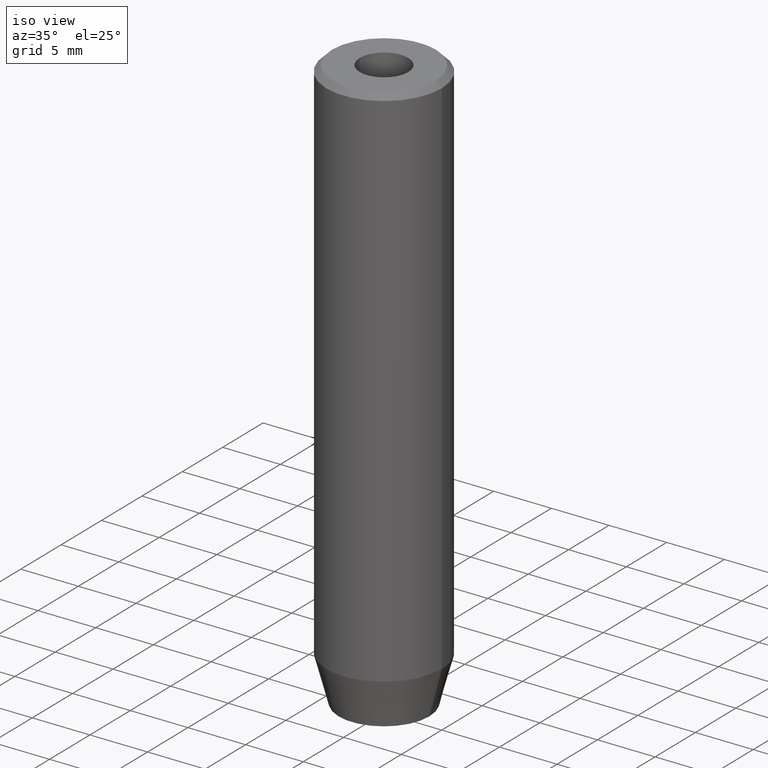
[diagram: clean part render]
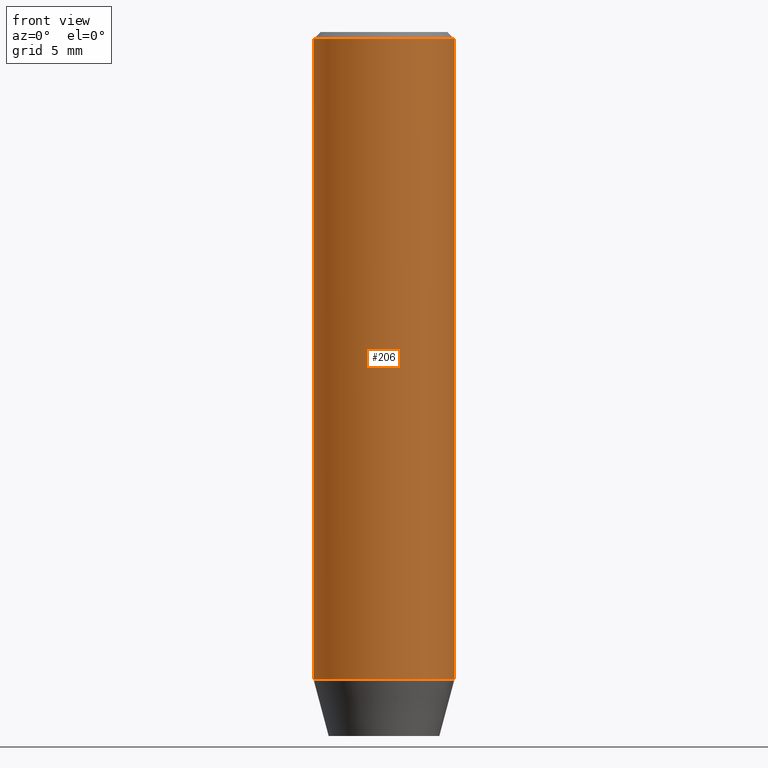
[diagram: tour spotlight — one face highlighted and labeled with its STEP entity id]
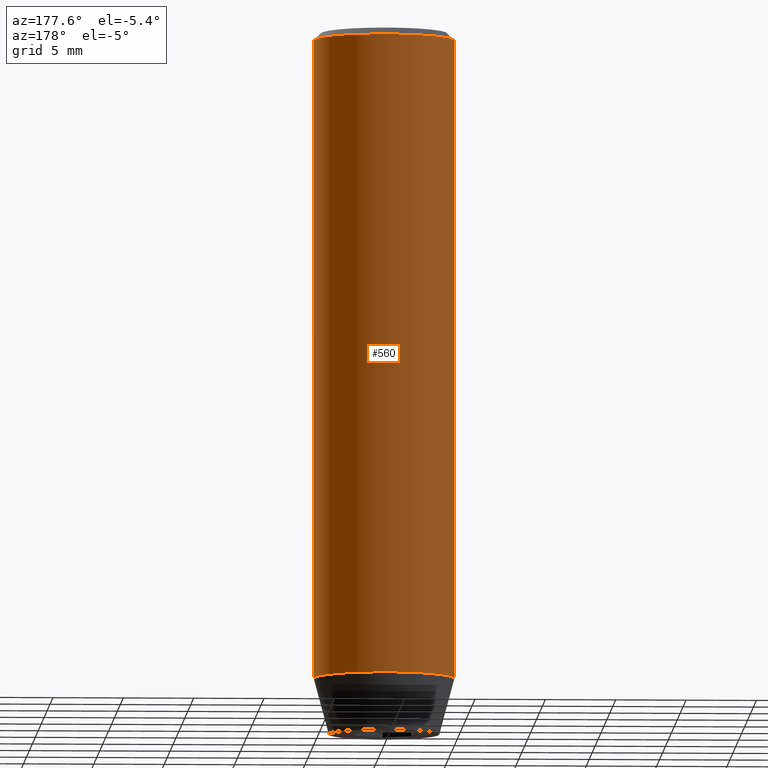
[diagram: tour spotlight — one face highlighted and labeled with its STEP entity id]
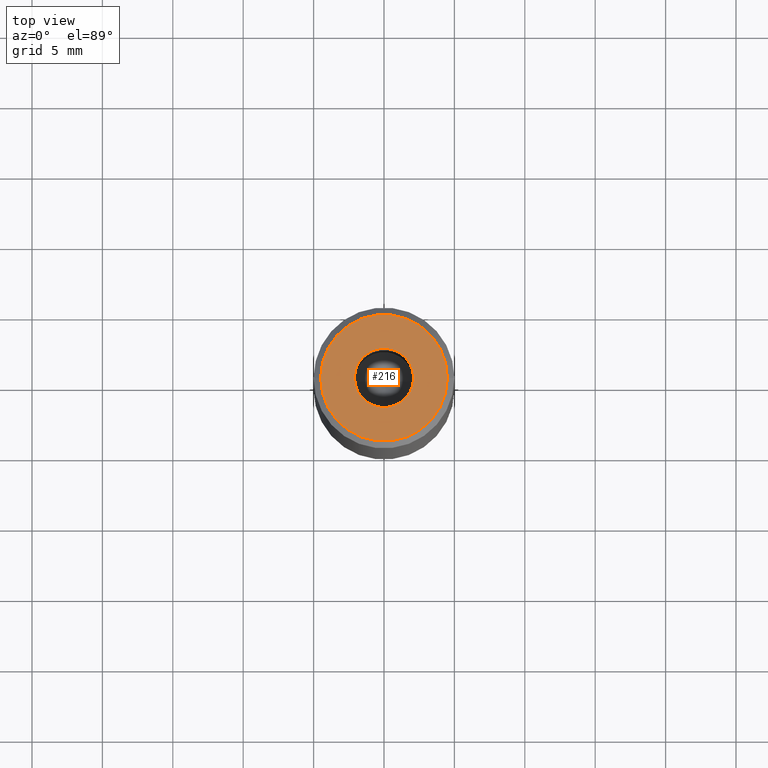
[diagram: tour spotlight — one face highlighted and labeled with its STEP entity id]
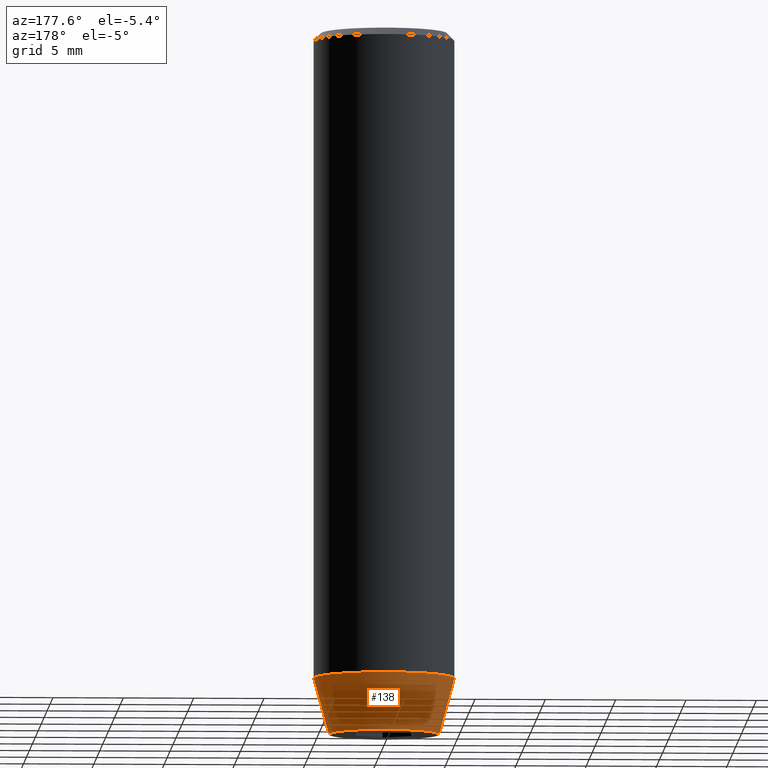
[diagram: tour spotlight — one face highlighted and labeled with its STEP entity id]
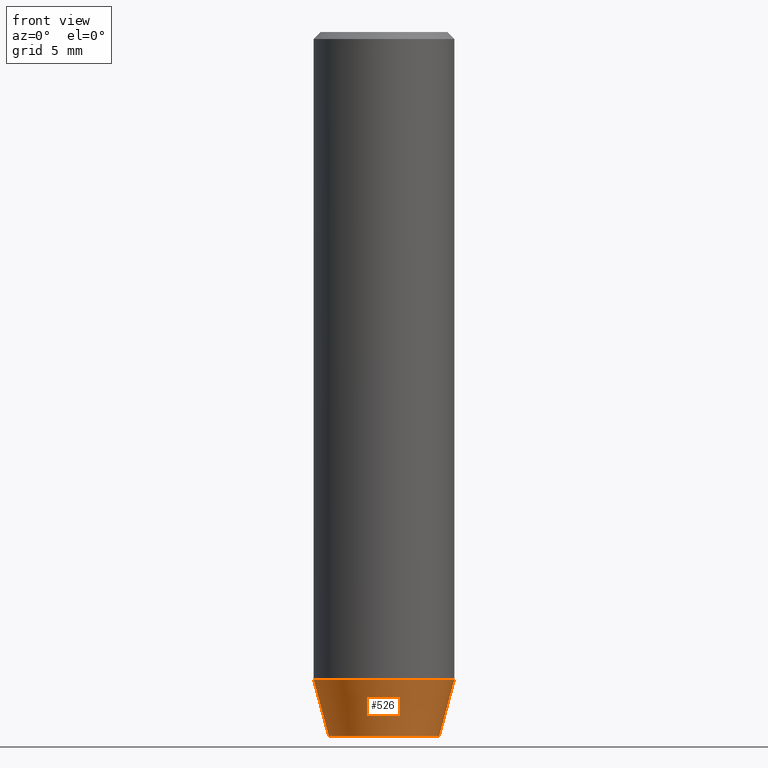
[diagram: tour spotlight — one face highlighted and labeled with its STEP entity id]
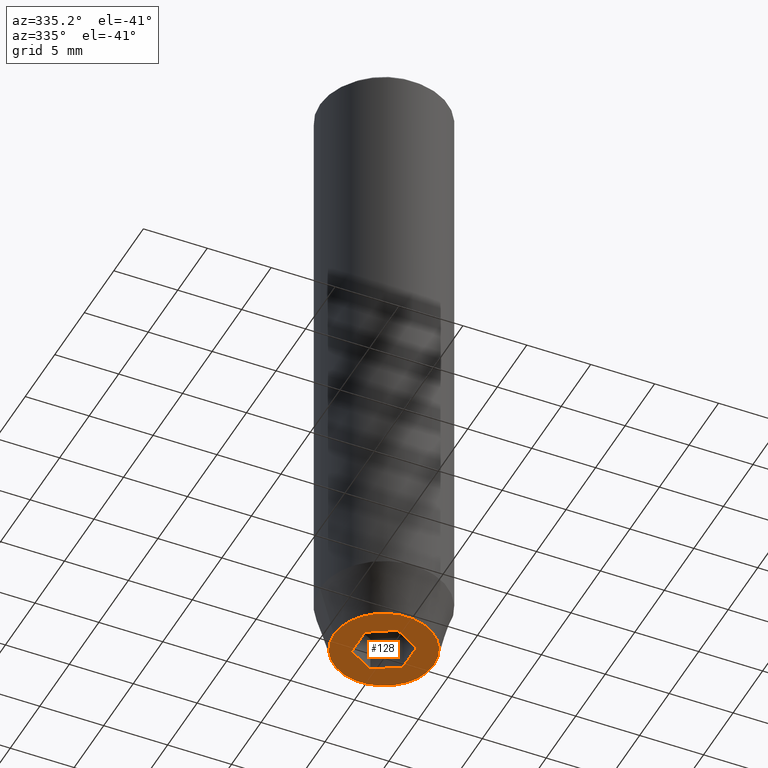
[diagram: tour spotlight — one face highlighted and labeled with its STEP entity id]
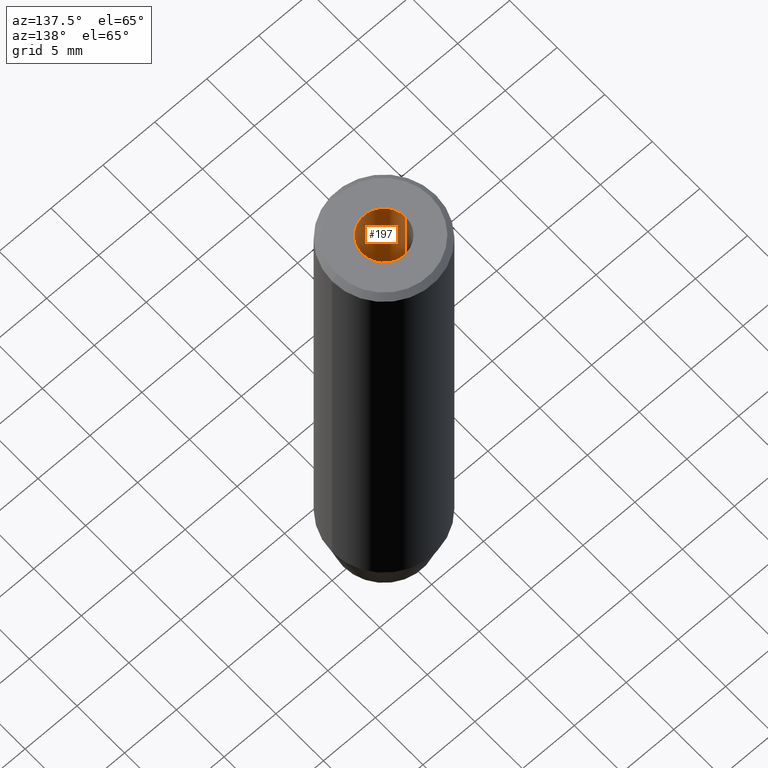
[diagram: tour spotlight — one face highlighted and labeled with its STEP entity id]
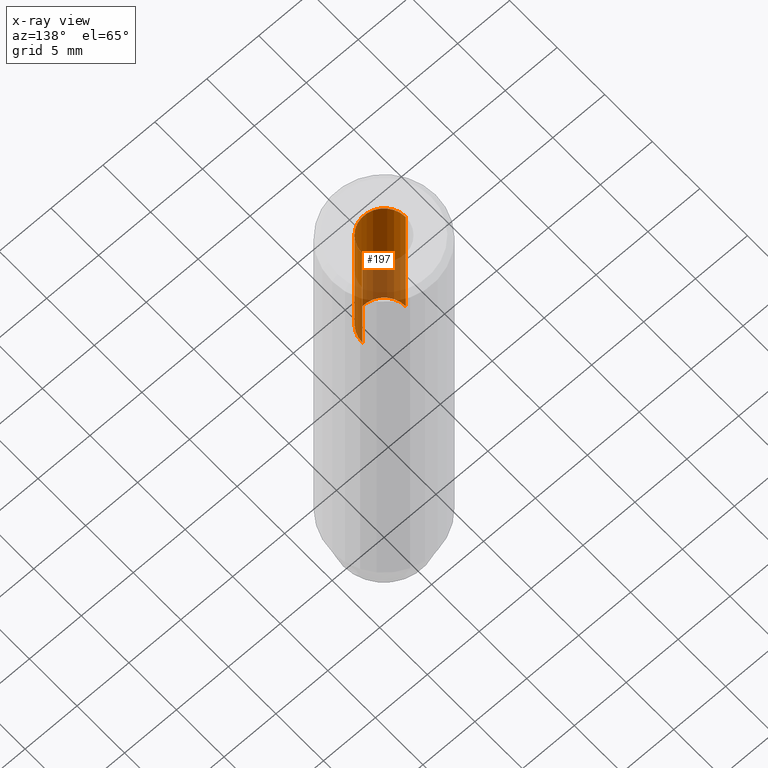
[diagram: x-ray of the same camera — body ghosted, this tour face saturated]
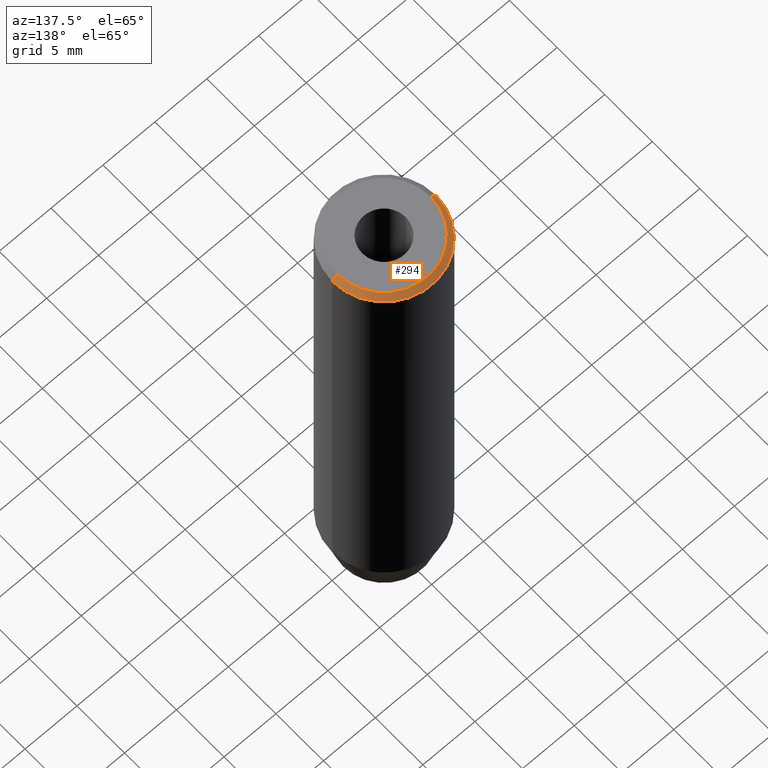
[diagram: tour spotlight — one face highlighted and labeled with its STEP entity id]
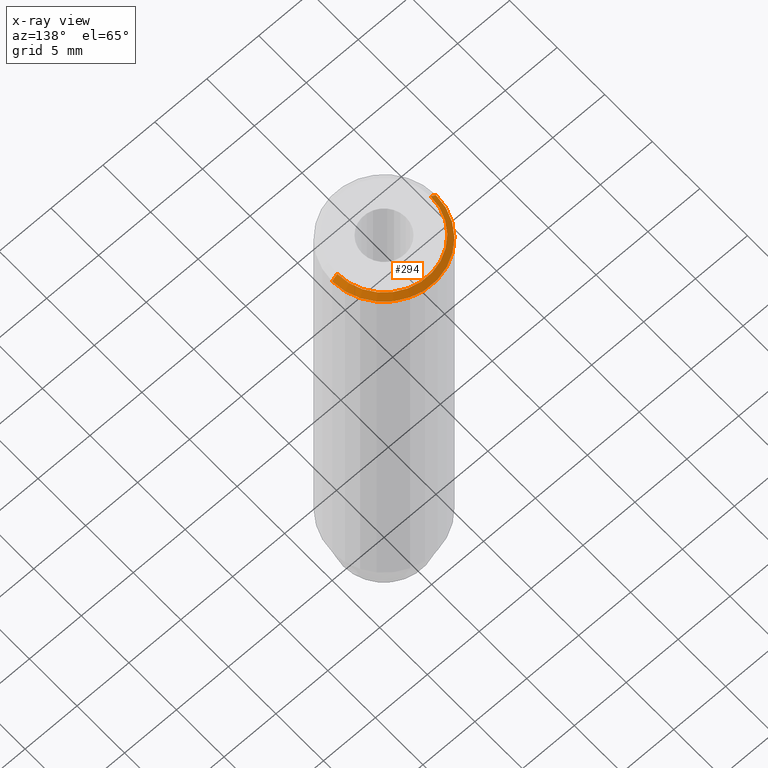
[diagram: x-ray of the same camera — body ghosted, this tour face saturated]
A machine part: a face-by-face anatomy tour. The part has 19 B-rep faces; the first image is the clean iso view, then the 8 largest visible faces are spotlighted one at a time (largest first), each with its STEP entity span.

Face 1 — front view, entity #206. In plain terms, the highlighted cylindrical surface (partial cylindrical patch) has radius 5 mm, axis along (-0, -0, 1).
Definition (entity closure, byte-faithful):
#10 = FACE_OUTER_BOUND ( 'NONE', #161, .T. ) ;
#25 = EDGE_CURVE ( 'NONE', #236, #104, #170, .T. ) ;
#43 = CARTESIAN_POINT ( 'NONE',  ( 5.000000000000000000, 0.000000000000000000, -0.4999999999999995559 ) ) ;
#51 = ORIENTED_EDGE ( 'NONE', *, *, #241, .T. ) ;
#58 = AXIS2_PLACEMENT_3D ( 'NONE', #318, #227, #548 ) ;
#88 = CARTESIAN_POINT ( 'NONE',  ( 0.000000000000000000, 0.000000000000000000, -46.00000000000000000 ) ) ;
#103 = VECTOR ( 'NONE', #309, 1000.000000000000000 ) ;
#104 = VERTEX_POINT ( 'NONE', #400 ) ;
#111 = VERTEX_POINT ( 'NONE', #43 ) ;
#148 = CARTESIAN_POINT ( 'NONE',  ( 0.000000000000000000, 0.000000000000000000, -0.4999999999999995559 ) ) ;
#161 = EDGE_LOOP ( 'NONE', ( #229, #203, #51, #254 ) ) ;
#170 = LINE ( 'NONE', #347, #103 ) ;
#178 = EDGE_CURVE ( 'NONE', #236, #459, #269, .T. ) ;
#179 = CYLINDRICAL_SURFACE ( 'NONE', #58, 5.000000000000000000 ) ;
#203 = ORIENTED_EDGE ( 'NONE', *, *, #178, .T. ) ;
#206 = ADVANCED_FACE ( 'NONE', ( #10 ), #179, .T. ) ;
#220 = CARTESIAN_POINT ( 'NONE',  ( -5.000000000000000000, 6.123233995736766282E-16, -46.00000000000000000 ) ) ;
#227 = DIRECTION ( 'NONE',  ( -0.000000000000000000, -0.000000000000000000, 1.000000000000000000 ) ) ;
#229 = ORIENTED_EDGE ( 'NONE', *, *, #25, .F. ) ;
#236 = VERTEX_POINT ( 'NONE', #220 ) ;
#241 = EDGE_CURVE ( 'NONE', #459, #111, #543, .T. ) ;
#254 = ORIENTED_EDGE ( 'NONE', *, *, #496, .T. ) ;
#269 = CIRCLE ( 'NONE', #545, 5.000000000000000000 ) ;
#275 = DIRECTION ( 'NONE',  ( -0.000000000000000000, -0.000000000000000000, 1.000000000000000000 ) ) ;
#282 = CARTESIAN_POINT ( 'NONE',  ( 5.000000000000000000, 0.000000000000000000, -46.00000000000000000 ) ) ;
#309 = DIRECTION ( 'NONE',  ( -0.000000000000000000, -0.000000000000000000, 1.000000000000000000 ) ) ;
#318 = CARTESIAN_POINT ( 'NONE',  ( 0.000000000000000000, 0.000000000000000000, 0.000000000000000000 ) ) ;
#324 = AXIS2_PLACEMENT_3D ( 'NONE', #148, #430, #521 ) ;
#347 = CARTESIAN_POINT ( 'NONE',  ( -5.000000000000000000, 6.123233995736766282E-16, 0.000000000000000000 ) ) ;
#400 = CARTESIAN_POINT ( 'NONE',  ( -5.000000000000000000, 6.123233995736766282E-16, -0.4999999999999995559 ) ) ;
#430 = DIRECTION ( 'NONE',  ( 0.000000000000000000, 0.000000000000000000, -1.000000000000000000 ) ) ;
#442 = DIRECTION ( 'NONE',  ( -0.000000000000000000, -0.000000000000000000, 1.000000000000000000 ) ) ;
#450 = CARTESIAN_POINT ( 'NONE',  ( 5.000000000000000000, 0.000000000000000000, 0.000000000000000000 ) ) ;
#459 = VERTEX_POINT ( 'NONE', #282 ) ;
#496 = EDGE_CURVE ( 'NONE', #111, #104, #498, .T. ) ;
#498 = CIRCLE ( 'NONE', #324, 5.000000000000000000 ) ;
#503 = DIRECTION ( 'NONE',  ( 1.000000000000000000, 0.000000000000000000, 0.000000000000000000 ) ) ;
#521 = DIRECTION ( 'NONE',  ( 1.000000000000000000, 0.000000000000000000, 0.000000000000000000 ) ) ;
#543 = LINE ( 'NONE', #450, #554 ) ;
#545 = AXIS2_PLACEMENT_3D ( 'NONE', #88, #275, #503 ) ;
#548 = DIRECTION ( 'NONE',  ( 1.000000000000000000, 0.000000000000000000, 0.000000000000000000 ) ) ;
#554 = VECTOR ( 'NONE', #442, 1000.000000000000000 ) ;

Face 2 — auxiliary view, entity #560. In plain terms, the highlighted cylindrical surface (partial cylindrical patch) has radius 5 mm, axis along (-0, -0, 1).
Definition (entity closure, byte-faithful):
#9 = CARTESIAN_POINT ( 'NONE',  ( 0.000000000000000000, 0.000000000000000000, 0.000000000000000000 ) ) ;
#25 = EDGE_CURVE ( 'NONE', #236, #104, #170, .T. ) ;
#43 = CARTESIAN_POINT ( 'NONE',  ( 5.000000000000000000, 0.000000000000000000, -0.4999999999999995559 ) ) ;
#49 = CIRCLE ( 'NONE', #380, 5.000000000000000000 ) ;
#65 = EDGE_CURVE ( 'NONE', #104, #111, #49, .T. ) ;
#103 = VECTOR ( 'NONE', #309, 1000.000000000000000 ) ;
#104 = VERTEX_POINT ( 'NONE', #400 ) ;
#106 = AXIS2_PLACEMENT_3D ( 'NONE', #9, #187, #289 ) ;
#111 = VERTEX_POINT ( 'NONE', #43 ) ;
#118 = EDGE_CURVE ( 'NONE', #459, #236, #475, .T. ) ;
#167 = DIRECTION ( 'NONE',  ( -0.000000000000000000, -0.000000000000000000, 1.000000000000000000 ) ) ;
#170 = LINE ( 'NONE', #347, #103 ) ;
#174 = DIRECTION ( 'NONE',  ( 1.000000000000000000, 0.000000000000000000, 0.000000000000000000 ) ) ;
#187 = DIRECTION ( 'NONE',  ( -0.000000000000000000, -0.000000000000000000, 1.000000000000000000 ) ) ;
#220 = CARTESIAN_POINT ( 'NONE',  ( -5.000000000000000000, 6.123233995736766282E-16, -46.00000000000000000 ) ) ;
#225 = CARTESIAN_POINT ( 'NONE',  ( 0.000000000000000000, 0.000000000000000000, -46.00000000000000000 ) ) ;
#236 = VERTEX_POINT ( 'NONE', #220 ) ;
#241 = EDGE_CURVE ( 'NONE', #459, #111, #543, .T. ) ;
#256 = DIRECTION ( 'NONE',  ( 0.000000000000000000, 0.000000000000000000, -1.000000000000000000 ) ) ;
#282 = CARTESIAN_POINT ( 'NONE',  ( 5.000000000000000000, 0.000000000000000000, -46.00000000000000000 ) ) ;
#289 = DIRECTION ( 'NONE',  ( 1.000000000000000000, 0.000000000000000000, 0.000000000000000000 ) ) ;
#309 = DIRECTION ( 'NONE',  ( -0.000000000000000000, -0.000000000000000000, 1.000000000000000000 ) ) ;
#347 = CARTESIAN_POINT ( 'NONE',  ( -5.000000000000000000, 6.123233995736766282E-16, 0.000000000000000000 ) ) ;
#376 = CYLINDRICAL_SURFACE ( 'NONE', #106, 5.000000000000000000 ) ;
#380 = AXIS2_PLACEMENT_3D ( 'NONE', #446, #256, #535 ) ;
#392 = ORIENTED_EDGE ( 'NONE', *, *, #25, .T. ) ;
#400 = CARTESIAN_POINT ( 'NONE',  ( -5.000000000000000000, 6.123233995736766282E-16, -0.4999999999999995559 ) ) ;
#431 = ORIENTED_EDGE ( 'NONE', *, *, #118, .T. ) ;
#442 = DIRECTION ( 'NONE',  ( -0.000000000000000000, -0.000000000000000000, 1.000000000000000000 ) ) ;
#446 = CARTESIAN_POINT ( 'NONE',  ( 0.000000000000000000, 0.000000000000000000, -0.4999999999999995559 ) ) ;
#450 = CARTESIAN_POINT ( 'NONE',  ( 5.000000000000000000, 0.000000000000000000, 0.000000000000000000 ) ) ;
#453 = ORIENTED_EDGE ( 'NONE', *, *, #65, .T. ) ;
#459 = VERTEX_POINT ( 'NONE', #282 ) ;
#466 = AXIS2_PLACEMENT_3D ( 'NONE', #225, #167, #174 ) ;
#475 = CIRCLE ( 'NONE', #466, 5.000000000000000000 ) ;
#535 = DIRECTION ( 'NONE',  ( 1.000000000000000000, 0.000000000000000000, 0.000000000000000000 ) ) ;
#543 = LINE ( 'NONE', #450, #554 ) ;
#554 = VECTOR ( 'NONE', #442, 1000.000000000000000 ) ;
#560 = ADVANCED_FACE ( 'NONE', ( #562 ), #376, .T. ) ;
#562 = FACE_OUTER_BOUND ( 'NONE', #569, .T. ) ;
#569 = EDGE_LOOP ( 'NONE', ( #431, #392, #453, #572 ) ) ;
#572 = ORIENTED_EDGE ( 'NONE', *, *, #241, .F. ) ;

Face 3 — top view, entity #216. In plain terms, the highlighted planar face has unit normal (0, -0, 1).
Definition (entity closure, byte-faithful):
#3 = EDGE_CURVE ( 'NONE', #243, #295, #67, .T. ) ;
#34 = CARTESIAN_POINT ( 'NONE',  ( -2.099999999999998757, 2.571758278209439985E-16, -1.990051048614449116E-16 ) ) ;
#41 = CARTESIAN_POINT ( 'NONE',  ( 0.000000000000000000, 0.000000000000000000, -1.990051048614449116E-16 ) ) ;
#46 = ORIENTED_EDGE ( 'NONE', *, *, #343, .F. ) ;
#67 = CIRCLE ( 'NONE', #359, 4.499999999999997335 ) ;
#85 = DIRECTION ( 'NONE',  ( -0.000000000000000000, -0.000000000000000000, 1.000000000000000000 ) ) ;
#95 = AXIS2_PLACEMENT_3D ( 'NONE', #536, #405, #399 ) ;
#113 = VERTEX_POINT ( 'NONE', #585 ) ;
#114 = AXIS2_PLACEMENT_3D ( 'NONE', #41, #134, #454 ) ;
#134 = DIRECTION ( 'NONE',  ( -0.000000000000000000, -0.000000000000000000, 1.000000000000000000 ) ) ;
#140 = FACE_OUTER_BOUND ( 'NONE', #340, .T. ) ;
#153 = ORIENTED_EDGE ( 'NONE', *, *, #3, .T. ) ;
#158 = CARTESIAN_POINT ( 'NONE',  ( 0.000000000000000000, 0.000000000000000000, 0.000000000000000000 ) ) ;
#162 = AXIS2_PLACEMENT_3D ( 'NONE', #349, #85, #360 ) ;
#188 = DIRECTION ( 'NONE',  ( 1.000000000000000000, 0.000000000000000000, 0.000000000000000000 ) ) ;
#216 = ADVANCED_FACE ( 'NONE', ( #358, #140 ), #414, .T. ) ;
#243 = VERTEX_POINT ( 'NONE', #489 ) ;
#259 = EDGE_CURVE ( 'NONE', #295, #243, #341, .T. ) ;
#284 = EDGE_CURVE ( 'NONE', #113, #299, #565, .T. ) ;
#285 = CIRCLE ( 'NONE', #162, 2.099999999999998757 ) ;
#290 = DIRECTION ( 'NONE',  ( -0.000000000000000000, -0.000000000000000000, 1.000000000000000000 ) ) ;
#295 = VERTEX_POINT ( 'NONE', #313 ) ;
#299 = VERTEX_POINT ( 'NONE', #34 ) ;
#313 = CARTESIAN_POINT ( 'NONE',  ( 4.499999999999997335, 5.817072295949926440E-16, 0.000000000000000000 ) ) ;
#323 = AXIS2_PLACEMENT_3D ( 'NONE', #501, #550, #188 ) ;
#340 = EDGE_LOOP ( 'NONE', ( #153, #464 ) ) ;
#341 = CIRCLE ( 'NONE', #95, 4.499999999999997335 ) ;
#343 = EDGE_CURVE ( 'NONE', #299, #113, #285, .T. ) ;
#349 = CARTESIAN_POINT ( 'NONE',  ( 0.000000000000000000, 0.000000000000000000, -1.990051048614449116E-16 ) ) ;
#358 = FACE_BOUND ( 'NONE', #436, .T. ) ;
#359 = AXIS2_PLACEMENT_3D ( 'NONE', #158, #290, #472 ) ;
#360 = DIRECTION ( 'NONE',  ( 1.000000000000000000, 0.000000000000000000, 0.000000000000000000 ) ) ;
#399 = DIRECTION ( 'NONE',  ( 1.000000000000000000, 0.000000000000000000, 0.000000000000000000 ) ) ;
#405 = DIRECTION ( 'NONE',  ( -0.000000000000000000, -0.000000000000000000, 1.000000000000000000 ) ) ;
#414 = PLANE ( 'NONE',  #323 ) ;
#423 = ORIENTED_EDGE ( 'NONE', *, *, #284, .F. ) ;
#436 = EDGE_LOOP ( 'NONE', ( #423, #46 ) ) ;
#454 = DIRECTION ( 'NONE',  ( 1.000000000000000000, 0.000000000000000000, 0.000000000000000000 ) ) ;
#464 = ORIENTED_EDGE ( 'NONE', *, *, #259, .T. ) ;
#472 = DIRECTION ( 'NONE',  ( 1.000000000000000000, 0.000000000000000000, 0.000000000000000000 ) ) ;
#489 = CARTESIAN_POINT ( 'NONE',  ( -4.499999999999997335, 0.000000000000000000, 0.000000000000000000 ) ) ;
#501 = CARTESIAN_POINT ( 'NONE',  ( 0.000000000000000000, 0.000000000000000000, 0.000000000000000000 ) ) ;
#536 = CARTESIAN_POINT ( 'NONE',  ( 0.000000000000000000, 0.000000000000000000, 0.000000000000000000 ) ) ;
#550 = DIRECTION ( 'NONE',  ( 0.000000000000000000, -0.000000000000000000, 1.000000000000000000 ) ) ;
#565 = CIRCLE ( 'NONE', #114, 2.099999999999998757 ) ;
#585 = CARTESIAN_POINT ( 'NONE',  ( 2.099999999999998757, 0.000000000000000000, -1.990051048614449116E-16 ) ) ;

Face 4 — auxiliary view, entity #138. In plain terms, the highlighted conical surface has half-angle 15 deg.
Definition (entity closure, byte-faithful):
#4 = DIRECTION ( 'NONE',  ( -0.000000000000000000, -0.000000000000000000, 1.000000000000000000 ) ) ;
#13 = ORIENTED_EDGE ( 'NONE', *, *, #552, .F. ) ;
#47 = CARTESIAN_POINT ( 'NONE',  ( -5.000000000000000000, 6.123233995736766282E-16, -46.00000000000000000 ) ) ;
#107 = DIRECTION ( 'NONE',  ( -0.2588190451025210725, 3.169619151431769255E-17, 0.9659258262890680902 ) ) ;
#109 = EDGE_CURVE ( 'NONE', #368, #374, #221, .T. ) ;
#115 = VECTOR ( 'NONE', #107, 1000.000000000000114 ) ;
#118 = EDGE_CURVE ( 'NONE', #459, #236, #475, .T. ) ;
#138 = ADVANCED_FACE ( 'NONE', ( #528 ), #371, .T. ) ;
#167 = DIRECTION ( 'NONE',  ( -0.000000000000000000, -0.000000000000000000, 1.000000000000000000 ) ) ;
#174 = DIRECTION ( 'NONE',  ( 1.000000000000000000, 0.000000000000000000, 0.000000000000000000 ) ) ;
#194 = CARTESIAN_POINT ( 'NONE',  ( 5.000000000000000000, 0.000000000000000000, -46.00000000000000000 ) ) ;
#220 = CARTESIAN_POINT ( 'NONE',  ( -5.000000000000000000, 6.123233995736766282E-16, -46.00000000000000000 ) ) ;
#221 = CIRCLE ( 'NONE', #494, 3.928203230275506996 ) ;
#225 = CARTESIAN_POINT ( 'NONE',  ( 0.000000000000000000, 0.000000000000000000, -46.00000000000000000 ) ) ;
#230 = LINE ( 'NONE', #194, #297 ) ;
#236 = VERTEX_POINT ( 'NONE', #220 ) ;
#268 = CARTESIAN_POINT ( 'NONE',  ( -3.928203230275506996, 5.466947754046979141E-16, -50.00000000000000000 ) ) ;
#282 = CARTESIAN_POINT ( 'NONE',  ( 5.000000000000000000, 0.000000000000000000, -46.00000000000000000 ) ) ;
#288 = ORIENTED_EDGE ( 'NONE', *, *, #541, .T. ) ;
#293 = LINE ( 'NONE', #47, #115 ) ;
#297 = VECTOR ( 'NONE', #412, 1000.000000000000114 ) ;
#301 = CARTESIAN_POINT ( 'NONE',  ( 0.000000000000000000, 0.000000000000000000, -46.00000000000000000 ) ) ;
#304 = DIRECTION ( 'NONE',  ( 1.000000000000000000, 0.000000000000000000, 0.000000000000000000 ) ) ;
#311 = CARTESIAN_POINT ( 'NONE',  ( 0.000000000000000000, 0.000000000000000000, -50.00000000000000000 ) ) ;
#322 = ORIENTED_EDGE ( 'NONE', *, *, #118, .F. ) ;
#348 = AXIS2_PLACEMENT_3D ( 'NONE', #301, #530, #304 ) ;
#368 = VERTEX_POINT ( 'NONE', #492 ) ;
#371 = CONICAL_SURFACE ( 'NONE', #348, 5.000000000000000000, 0.2617993877991497964 ) ;
#374 = VERTEX_POINT ( 'NONE', #268 ) ;
#412 = DIRECTION ( 'NONE',  ( 0.2588190451025210725, 0.000000000000000000, 0.9659258262890680902 ) ) ;
#459 = VERTEX_POINT ( 'NONE', #282 ) ;
#466 = AXIS2_PLACEMENT_3D ( 'NONE', #225, #167, #174 ) ;
#475 = CIRCLE ( 'NONE', #466, 5.000000000000000000 ) ;
#478 = ORIENTED_EDGE ( 'NONE', *, *, #109, .T. ) ;
#492 = CARTESIAN_POINT ( 'NONE',  ( 3.928203230275506996, 0.000000000000000000, -50.00000000000000000 ) ) ;
#493 = DIRECTION ( 'NONE',  ( 1.000000000000000000, 0.000000000000000000, 0.000000000000000000 ) ) ;
#494 = AXIS2_PLACEMENT_3D ( 'NONE', #311, #4, #493 ) ;
#518 = EDGE_LOOP ( 'NONE', ( #478, #288, #322, #13 ) ) ;
#528 = FACE_OUTER_BOUND ( 'NONE', #518, .T. ) ;
#530 = DIRECTION ( 'NONE',  ( -0.000000000000000000, -0.000000000000000000, 1.000000000000000000 ) ) ;
#541 = EDGE_CURVE ( 'NONE', #374, #236, #293, .T. ) ;
#552 = EDGE_CURVE ( 'NONE', #368, #459, #230, .T. ) ;

Face 5 — front view, entity #526. In plain terms, the highlighted conical surface has half-angle 15 deg.
Definition (entity closure, byte-faithful):
#1 = DIRECTION ( 'NONE',  ( -0.000000000000000000, -0.000000000000000000, 1.000000000000000000 ) ) ;
#17 = CARTESIAN_POINT ( 'NONE',  ( 0.000000000000000000, 0.000000000000000000, -46.00000000000000000 ) ) ;
#29 = ORIENTED_EDGE ( 'NONE', *, *, #178, .F. ) ;
#30 = EDGE_CURVE ( 'NONE', #374, #368, #181, .T. ) ;
#47 = CARTESIAN_POINT ( 'NONE',  ( -5.000000000000000000, 6.123233995736766282E-16, -46.00000000000000000 ) ) ;
#88 = CARTESIAN_POINT ( 'NONE',  ( 0.000000000000000000, 0.000000000000000000, -46.00000000000000000 ) ) ;
#107 = DIRECTION ( 'NONE',  ( -0.2588190451025210725, 3.169619151431769255E-17, 0.9659258262890680902 ) ) ;
#115 = VECTOR ( 'NONE', #107, 1000.000000000000114 ) ;
#130 = CARTESIAN_POINT ( 'NONE',  ( 0.000000000000000000, 0.000000000000000000, -50.00000000000000000 ) ) ;
#151 = EDGE_LOOP ( 'NONE', ( #186, #549, #522, #29 ) ) ;
#155 = DIRECTION ( 'NONE',  ( -0.000000000000000000, -0.000000000000000000, 1.000000000000000000 ) ) ;
#178 = EDGE_CURVE ( 'NONE', #236, #459, #269, .T. ) ;
#181 = CIRCLE ( 'NONE', #331, 3.928203230275506996 ) ;
#186 = ORIENTED_EDGE ( 'NONE', *, *, #541, .F. ) ;
#194 = CARTESIAN_POINT ( 'NONE',  ( 5.000000000000000000, 0.000000000000000000, -46.00000000000000000 ) ) ;
#212 = DIRECTION ( 'NONE',  ( 1.000000000000000000, 0.000000000000000000, 0.000000000000000000 ) ) ;
#220 = CARTESIAN_POINT ( 'NONE',  ( -5.000000000000000000, 6.123233995736766282E-16, -46.00000000000000000 ) ) ;
#230 = LINE ( 'NONE', #194, #297 ) ;
#236 = VERTEX_POINT ( 'NONE', #220 ) ;
#240 = CONICAL_SURFACE ( 'NONE', #350, 5.000000000000000000, 0.2617993877991497964 ) ;
#268 = CARTESIAN_POINT ( 'NONE',  ( -3.928203230275506996, 5.466947754046979141E-16, -50.00000000000000000 ) ) ;
#269 = CIRCLE ( 'NONE', #545, 5.000000000000000000 ) ;
#275 = DIRECTION ( 'NONE',  ( -0.000000000000000000, -0.000000000000000000, 1.000000000000000000 ) ) ;
#282 = CARTESIAN_POINT ( 'NONE',  ( 5.000000000000000000, 0.000000000000000000, -46.00000000000000000 ) ) ;
#293 = LINE ( 'NONE', #47, #115 ) ;
#297 = VECTOR ( 'NONE', #412, 1000.000000000000114 ) ;
#331 = AXIS2_PLACEMENT_3D ( 'NONE', #130, #1, #212 ) ;
#334 = DIRECTION ( 'NONE',  ( 1.000000000000000000, 0.000000000000000000, 0.000000000000000000 ) ) ;
#350 = AXIS2_PLACEMENT_3D ( 'NONE', #17, #155, #334 ) ;
#368 = VERTEX_POINT ( 'NONE', #492 ) ;
#374 = VERTEX_POINT ( 'NONE', #268 ) ;
#382 = FACE_OUTER_BOUND ( 'NONE', #151, .T. ) ;
#412 = DIRECTION ( 'NONE',  ( 0.2588190451025210725, 0.000000000000000000, 0.9659258262890680902 ) ) ;
#459 = VERTEX_POINT ( 'NONE', #282 ) ;
#492 = CARTESIAN_POINT ( 'NONE',  ( 3.928203230275506996, 0.000000000000000000, -50.00000000000000000 ) ) ;
#503 = DIRECTION ( 'NONE',  ( 1.000000000000000000, 0.000000000000000000, 0.000000000000000000 ) ) ;
#522 = ORIENTED_EDGE ( 'NONE', *, *, #552, .T. ) ;
#526 = ADVANCED_FACE ( 'NONE', ( #382 ), #240, .T. ) ;
#541 = EDGE_CURVE ( 'NONE', #374, #236, #293, .T. ) ;
#545 = AXIS2_PLACEMENT_3D ( 'NONE', #88, #275, #503 ) ;
#549 = ORIENTED_EDGE ( 'NONE', *, *, #30, .T. ) ;
#552 = EDGE_CURVE ( 'NONE', #368, #459, #230, .T. ) ;

Face 6 — auxiliary view, entity #128. In plain terms, the highlighted planar face has unit normal (0, 0, -1).
Definition (entity closure, byte-faithful):
#1 = DIRECTION ( 'NONE',  ( -0.000000000000000000, -0.000000000000000000, 1.000000000000000000 ) ) ;
#4 = DIRECTION ( 'NONE',  ( -0.000000000000000000, -0.000000000000000000, 1.000000000000000000 ) ) ;
#11 = ORIENTED_EDGE ( 'NONE', *, *, #30, .F. ) ;
#30 = EDGE_CURVE ( 'NONE', #374, #368, #181, .T. ) ;
#33 = CARTESIAN_POINT ( 'NONE',  ( -1.999999999999998668, -1.154700538379252572, -50.00000000000000000 ) ) ;
#42 = EDGE_CURVE ( 'NONE', #145, #74, #122, .T. ) ;
#56 = CARTESIAN_POINT ( 'NONE',  ( 2.000000000000000888, 0.000000000000000000, -50.00000000000000000 ) ) ;
#57 = VERTEX_POINT ( 'NONE', #538 ) ;
#60 = DIRECTION ( 'NONE',  ( 0.8660254037844385966, -0.5000000000000001110, 0.000000000000000000 ) ) ;
#62 = CARTESIAN_POINT ( 'NONE',  ( 1.000000000000000444, 1.732050807568877637, -50.00000000000000000 ) ) ;
#68 = VECTOR ( 'NONE', #557, 1000.000000000000000 ) ;
#74 = VERTEX_POINT ( 'NONE', #75 ) ;
#75 = CARTESIAN_POINT ( 'NONE',  ( 2.168404344971008868E-16, -2.309401076758503812, -50.00000000000000000 ) ) ;
#78 = DIRECTION ( 'NONE',  ( -1.000000000000000000, 0.000000000000000000, -0.000000000000000000 ) ) ;
#81 = DIRECTION ( 'NONE',  ( -0.8660254037844388186, -0.4999999999999996114, 0.000000000000000000 ) ) ;
#84 = EDGE_CURVE ( 'NONE', #74, #117, #356, .T. ) ;
#86 = CARTESIAN_POINT ( 'NONE',  ( 0.9999999999999997780, -1.732050807568878747, -50.00000000000000000 ) ) ;
#89 = VERTEX_POINT ( 'NONE', #443 ) ;
#109 = EDGE_CURVE ( 'NONE', #368, #374, #221, .T. ) ;
#112 = DIRECTION ( 'NONE',  ( 0.000000000000000000, -1.000000000000000000, 0.000000000000000000 ) ) ;
#116 = DIRECTION ( 'NONE',  ( 5.633679745264339711E-16, 1.000000000000000000, 0.000000000000000000 ) ) ;
#117 = VERTEX_POINT ( 'NONE', #33 ) ;
#120 = FACE_BOUND ( 'NONE', #365, .T. ) ;
#122 = LINE ( 'NONE', #86, #482 ) ;
#125 = CARTESIAN_POINT ( 'NONE',  ( -1.999999999999998224, 1.126735949052866956E-15, -50.00000000000000000 ) ) ;
#128 = ADVANCED_FACE ( 'NONE', ( #120, #395 ), #398, .T. ) ;
#130 = CARTESIAN_POINT ( 'NONE',  ( 0.000000000000000000, 0.000000000000000000, -50.00000000000000000 ) ) ;
#144 = ORIENTED_EDGE ( 'NONE', *, *, #84, .F. ) ;
#145 = VERTEX_POINT ( 'NONE', #481 ) ;
#181 = CIRCLE ( 'NONE', #331, 3.928203230275506996 ) ;
#189 = ORIENTED_EDGE ( 'NONE', *, *, #570, .F. ) ;
#212 = DIRECTION ( 'NONE',  ( 1.000000000000000000, 0.000000000000000000, 0.000000000000000000 ) ) ;
#214 = LINE ( 'NONE', #125, #555 ) ;
#221 = CIRCLE ( 'NONE', #494, 3.928203230275506996 ) ;
#265 = CARTESIAN_POINT ( 'NONE',  ( -1.000000000000000222, -1.732050807568877637, -50.00000000000000000 ) ) ;
#268 = CARTESIAN_POINT ( 'NONE',  ( -3.928203230275506996, 5.466947754046979141E-16, -50.00000000000000000 ) ) ;
#277 = AXIS2_PLACEMENT_3D ( 'NONE', #407, #342, #78 ) ;
#287 = CARTESIAN_POINT ( 'NONE',  ( -1.000000000000000444, 1.732050807568877637, -50.00000000000000000 ) ) ;
#311 = CARTESIAN_POINT ( 'NONE',  ( 0.000000000000000000, 0.000000000000000000, -50.00000000000000000 ) ) ;
#319 = ORIENTED_EDGE ( 'NONE', *, *, #513, .F. ) ;
#328 = ORIENTED_EDGE ( 'NONE', *, *, #42, .F. ) ;
#331 = AXIS2_PLACEMENT_3D ( 'NONE', #130, #1, #212 ) ;
#332 = LINE ( 'NONE', #62, #393 ) ;
#333 = ORIENTED_EDGE ( 'NONE', *, *, #462, .F. ) ;
#342 = DIRECTION ( 'NONE',  ( 0.000000000000000000, 0.000000000000000000, -1.000000000000000000 ) ) ;
#356 = LINE ( 'NONE', #265, #361 ) ;
#361 = VECTOR ( 'NONE', #404, 999.9999999999998863 ) ;
#365 = EDGE_LOOP ( 'NONE', ( #479, #189, #144, #328, #319, #333 ) ) ;
#368 = VERTEX_POINT ( 'NONE', #492 ) ;
#374 = VERTEX_POINT ( 'NONE', #268 ) ;
#385 = LINE ( 'NONE', #287, #68 ) ;
#393 = VECTOR ( 'NONE', #60, 1000.000000000000000 ) ;
#395 = FACE_OUTER_BOUND ( 'NONE', #418, .T. ) ;
#398 = PLANE ( 'NONE',  #277 ) ;
#404 = DIRECTION ( 'NONE',  ( -0.8660254037844387076, 0.5000000000000001110, 0.000000000000000000 ) ) ;
#407 = CARTESIAN_POINT ( 'NONE',  ( 0.000000000000000000, 3.928203230275506996, -50.00000000000000000 ) ) ;
#418 = EDGE_LOOP ( 'NONE', ( #504, #11 ) ) ;
#421 = VECTOR ( 'NONE', #112, 1000.000000000000000 ) ;
#426 = LINE ( 'NONE', #56, #421 ) ;
#434 = EDGE_CURVE ( 'NONE', #89, #57, #385, .T. ) ;
#443 = CARTESIAN_POINT ( 'NONE',  ( -1.999999999999997780, 1.154700538379253238, -50.00000000000000000 ) ) ;
#462 = EDGE_CURVE ( 'NONE', #57, #469, #332, .T. ) ;
#469 = VERTEX_POINT ( 'NONE', #568 ) ;
#479 = ORIENTED_EDGE ( 'NONE', *, *, #434, .F. ) ;
#481 = CARTESIAN_POINT ( 'NONE',  ( 2.000000000000000888, -1.154700538379252572, -50.00000000000000000 ) ) ;
#482 = VECTOR ( 'NONE', #81, 1000.000000000000114 ) ;
#492 = CARTESIAN_POINT ( 'NONE',  ( 3.928203230275506996, 0.000000000000000000, -50.00000000000000000 ) ) ;
#493 = DIRECTION ( 'NONE',  ( 1.000000000000000000, 0.000000000000000000, 0.000000000000000000 ) ) ;
#494 = AXIS2_PLACEMENT_3D ( 'NONE', #311, #4, #493 ) ;
#504 = ORIENTED_EDGE ( 'NONE', *, *, #109, .F. ) ;
#513 = EDGE_CURVE ( 'NONE', #469, #145, #426, .T. ) ;
#538 = CARTESIAN_POINT ( 'NONE',  ( 0.000000000000000000, 2.309401076758503812, -50.00000000000000000 ) ) ;
#555 = VECTOR ( 'NONE', #116, 1000.000000000000000 ) ;
#557 = DIRECTION ( 'NONE',  ( 0.8660254037844385966, 0.5000000000000001110, 0.000000000000000000 ) ) ;
#568 = CARTESIAN_POINT ( 'NONE',  ( 2.000000000000000888, 1.154700538379251462, -50.00000000000000000 ) ) ;
#570 = EDGE_CURVE ( 'NONE', #117, #89, #214, .T. ) ;

Face 7 — auxiliary view, entity #197. An x-ray twin of the same camera follows (body ghosted, this face saturated) — the face is partly hidden behind the body. In plain terms, the highlighted cylindrical surface (edge-blend (fillet) strip) has radius 2.1 mm, axis along (-0, -0, 1).
Definition (entity closure, byte-faithful):
#15 = AXIS2_PLACEMENT_3D ( 'NONE', #231, #185, #364 ) ;
#19 = CARTESIAN_POINT ( 'NONE',  ( 2.099999999999997868, 0.000000000000000000, 0.000000000000000000 ) ) ;
#22 = EDGE_LOOP ( 'NONE', ( #551, #96, #205, #208 ) ) ;
#34 = CARTESIAN_POINT ( 'NONE',  ( -2.099999999999998757, 2.571758278209439985E-16, -1.990051048614449116E-16 ) ) ;
#36 = LINE ( 'NONE', #39, #574 ) ;
#39 = CARTESIAN_POINT ( 'NONE',  ( -2.099999999999997868, 2.571758278209438999E-16, 0.000000000000000000 ) ) ;
#72 = EDGE_CURVE ( 'NONE', #335, #379, #247, .T. ) ;
#85 = DIRECTION ( 'NONE',  ( -0.000000000000000000, -0.000000000000000000, 1.000000000000000000 ) ) ;
#91 = EDGE_CURVE ( 'NONE', #335, #299, #36, .T. ) ;
#94 = FACE_OUTER_BOUND ( 'NONE', #22, .T. ) ;
#96 = ORIENTED_EDGE ( 'NONE', *, *, #91, .T. ) ;
#113 = VERTEX_POINT ( 'NONE', #585 ) ;
#162 = AXIS2_PLACEMENT_3D ( 'NONE', #349, #85, #360 ) ;
#176 = DIRECTION ( 'NONE',  ( 1.000000000000000000, 0.000000000000000000, 0.000000000000000000 ) ) ;
#185 = DIRECTION ( 'NONE',  ( -0.000000000000000000, -0.000000000000000000, 1.000000000000000000 ) ) ;
#197 = ADVANCED_FACE ( 'NONE', ( #94 ), #455, .F. ) ;
#199 = DIRECTION ( 'NONE',  ( -0.000000000000000000, -0.000000000000000000, 1.000000000000000000 ) ) ;
#205 = ORIENTED_EDGE ( 'NONE', *, *, #343, .T. ) ;
#208 = ORIENTED_EDGE ( 'NONE', *, *, #470, .F. ) ;
#231 = CARTESIAN_POINT ( 'NONE',  ( 0.000000000000000000, 0.000000000000000000, 0.000000000000000000 ) ) ;
#247 = CIRCLE ( 'NONE', #534, 2.099999999999996980 ) ;
#285 = CIRCLE ( 'NONE', #162, 2.099999999999998757 ) ;
#299 = VERTEX_POINT ( 'NONE', #34 ) ;
#335 = VERTEX_POINT ( 'NONE', #353 ) ;
#343 = EDGE_CURVE ( 'NONE', #299, #113, #285, .T. ) ;
#349 = CARTESIAN_POINT ( 'NONE',  ( 0.000000000000000000, 0.000000000000000000, -1.990051048614449116E-16 ) ) ;
#353 = CARTESIAN_POINT ( 'NONE',  ( -2.099999999999996980, 2.571758278209438013E-16, -15.00000000000000000 ) ) ;
#360 = DIRECTION ( 'NONE',  ( 1.000000000000000000, 0.000000000000000000, 0.000000000000000000 ) ) ;
#364 = DIRECTION ( 'NONE',  ( 1.000000000000000000, 0.000000000000000000, 0.000000000000000000 ) ) ;
#379 = VERTEX_POINT ( 'NONE', #500 ) ;
#424 = LINE ( 'NONE', #19, #476 ) ;
#449 = CARTESIAN_POINT ( 'NONE',  ( 0.000000000000000000, 0.000000000000000000, -15.00000000000000000 ) ) ;
#455 = CYLINDRICAL_SURFACE ( 'NONE', #15, 2.099999999999997868 ) ;
#470 = EDGE_CURVE ( 'NONE', #379, #113, #424, .T. ) ;
#476 = VECTOR ( 'NONE', #199, 1000.000000000000000 ) ;
#491 = DIRECTION ( 'NONE',  ( -0.000000000000000000, -0.000000000000000000, 1.000000000000000000 ) ) ;
#500 = CARTESIAN_POINT ( 'NONE',  ( 2.099999999999996980, 0.000000000000000000, -15.00000000000000000 ) ) ;
#534 = AXIS2_PLACEMENT_3D ( 'NONE', #449, #491, #176 ) ;
#542 = DIRECTION ( 'NONE',  ( -0.000000000000000000, -0.000000000000000000, 1.000000000000000000 ) ) ;
#551 = ORIENTED_EDGE ( 'NONE', *, *, #72, .F. ) ;
#574 = VECTOR ( 'NONE', #542, 1000.000000000000000 ) ;
#585 = CARTESIAN_POINT ( 'NONE',  ( 2.099999999999998757, 0.000000000000000000, -1.990051048614449116E-16 ) ) ;

Face 8 — auxiliary view, entity #294. An x-ray twin of the same camera follows (body ghosted, this face saturated) — the face is partly hidden behind the body. In plain terms, the highlighted conical surface has half-angle 45 deg.
Definition (entity closure, byte-faithful):
#8 = EDGE_LOOP ( 'NONE', ( #198, #510, #54, #251 ) ) ;
#21 = LINE ( 'NONE', #238, #201 ) ;
#43 = CARTESIAN_POINT ( 'NONE',  ( 5.000000000000000000, 0.000000000000000000, -0.4999999999999995559 ) ) ;
#49 = CIRCLE ( 'NONE', #380, 5.000000000000000000 ) ;
#54 = ORIENTED_EDGE ( 'NONE', *, *, #65, .F. ) ;
#65 = EDGE_CURVE ( 'NONE', #104, #111, #49, .T. ) ;
#95 = AXIS2_PLACEMENT_3D ( 'NONE', #536, #405, #399 ) ;
#104 = VERTEX_POINT ( 'NONE', #400 ) ;
#111 = VERTEX_POINT ( 'NONE', #43 ) ;
#180 = CARTESIAN_POINT ( 'NONE',  ( 0.000000000000000000, 0.000000000000000000, 0.000000000000000000 ) ) ;
#198 = ORIENTED_EDGE ( 'NONE', *, *, #259, .F. ) ;
#201 = VECTOR ( 'NONE', #468, 1000.000000000000114 ) ;
#209 = VECTOR ( 'NONE', #547, 1000.000000000000114 ) ;
#226 = DIRECTION ( 'NONE',  ( 0.000000000000000000, 0.000000000000000000, -1.000000000000000000 ) ) ;
#238 = CARTESIAN_POINT ( 'NONE',  ( -4.499999999999997335, 0.000000000000000000, 0.000000000000000000 ) ) ;
#243 = VERTEX_POINT ( 'NONE', #489 ) ;
#251 = ORIENTED_EDGE ( 'NONE', *, *, #451, .F. ) ;
#256 = DIRECTION ( 'NONE',  ( 0.000000000000000000, 0.000000000000000000, -1.000000000000000000 ) ) ;
#259 = EDGE_CURVE ( 'NONE', #295, #243, #341, .T. ) ;
#266 = DIRECTION ( 'NONE',  ( -1.000000000000000000, 0.000000000000000000, 0.000000000000000000 ) ) ;
#294 = ADVANCED_FACE ( 'NONE', ( #587 ), #305, .T. ) ;
#295 = VERTEX_POINT ( 'NONE', #313 ) ;
#296 = AXIS2_PLACEMENT_3D ( 'NONE', #180, #226, #266 ) ;
#302 = EDGE_CURVE ( 'NONE', #295, #111, #583, .T. ) ;
#305 = CONICAL_SURFACE ( 'NONE', #296, 4.499999999999997335, 0.7853981633974517207 ) ;
#313 = CARTESIAN_POINT ( 'NONE',  ( 4.499999999999997335, 5.817072295949926440E-16, 0.000000000000000000 ) ) ;
#341 = CIRCLE ( 'NONE', #95, 4.499999999999997335 ) ;
#380 = AXIS2_PLACEMENT_3D ( 'NONE', #446, #256, #535 ) ;
#399 = DIRECTION ( 'NONE',  ( 1.000000000000000000, 0.000000000000000000, 0.000000000000000000 ) ) ;
#400 = CARTESIAN_POINT ( 'NONE',  ( -5.000000000000000000, 6.123233995736766282E-16, -0.4999999999999995559 ) ) ;
#405 = DIRECTION ( 'NONE',  ( -0.000000000000000000, -0.000000000000000000, 1.000000000000000000 ) ) ;
#408 = CARTESIAN_POINT ( 'NONE',  ( 4.499999999999997335, 5.510910596163085611E-16, 0.000000000000000000 ) ) ;
#446 = CARTESIAN_POINT ( 'NONE',  ( 0.000000000000000000, 0.000000000000000000, -0.4999999999999995559 ) ) ;
#451 = EDGE_CURVE ( 'NONE', #243, #104, #21, .T. ) ;
#468 = DIRECTION ( 'NONE',  ( -0.7071067811865500152, 0.000000000000000000, -0.7071067811865451302 ) ) ;
#489 = CARTESIAN_POINT ( 'NONE',  ( -4.499999999999997335, 0.000000000000000000, 0.000000000000000000 ) ) ;
#510 = ORIENTED_EDGE ( 'NONE', *, *, #302, .T. ) ;
#535 = DIRECTION ( 'NONE',  ( 1.000000000000000000, 0.000000000000000000, 0.000000000000000000 ) ) ;
#536 = CARTESIAN_POINT ( 'NONE',  ( 0.000000000000000000, 0.000000000000000000, 0.000000000000000000 ) ) ;
#547 = DIRECTION ( 'NONE',  ( 0.7071067811865500152, 8.659560562354962440E-17, -0.7071067811865451302 ) ) ;
#583 = LINE ( 'NONE', #408, #209 ) ;
#587 = FACE_OUTER_BOUND ( 'NONE', #8, .T. ) ;